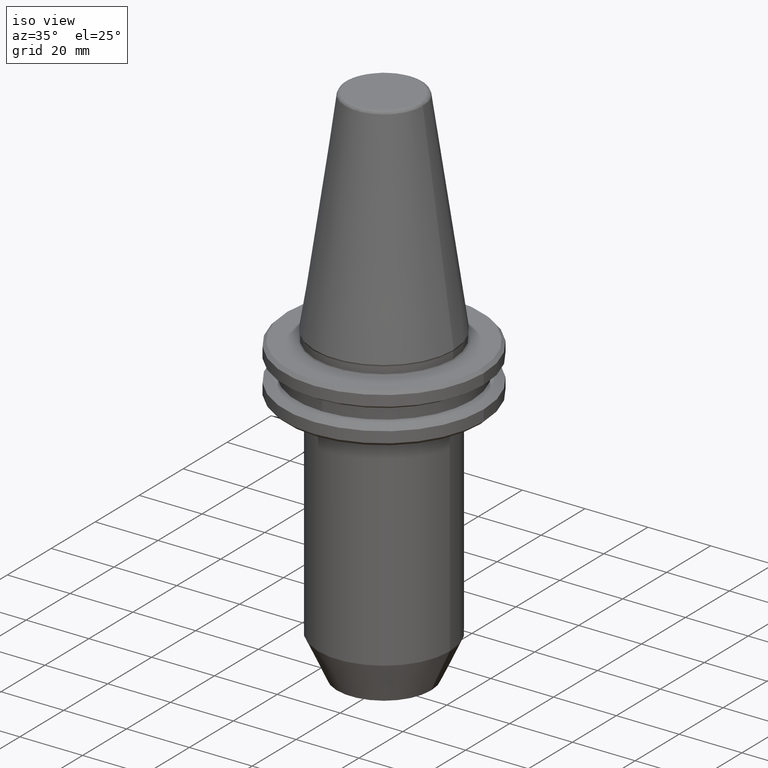
[diagram: clean part render]
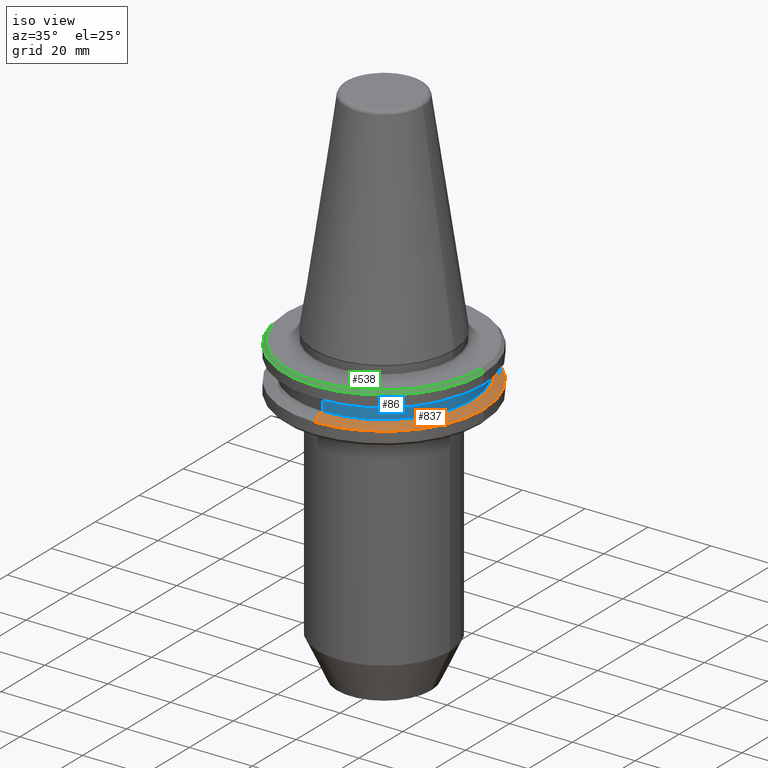
[diagram: same view with three faces highlighted in distinct colors, each labeled with its STEP entity id]
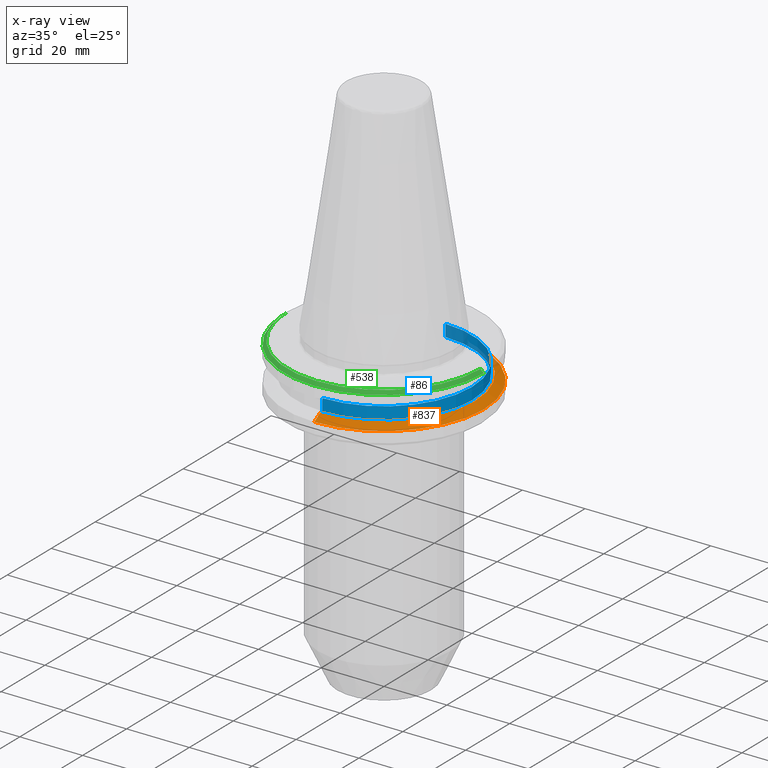
[diagram: x-ray of the same camera — body ghosted, the three highlighted faces saturated]
A machine part, iso view with three faces highlighted in distinct colors.
The next image is the same camera in x-ray (body ghosted, the three faces saturated) — at least one of them is partly hidden behind the body in this view.
Their STEP definitions:

[orange] entity #837 — the highlighted conical surface has half-angle 60 deg.
#17 = AXIS2_PLACEMENT_3D ( 'NONE', #236, #229, #244 ) ;
#38 = ORIENTED_EDGE ( 'NONE', *, *, #1024, .T. ) ;
#46 = CARTESIAN_POINT ( 'NONE',  ( 3.716245608450672000E-015, -28.94089652902035000, -12.99999999712499800 ) ) ;
#56 = DIRECTION ( 'NONE',  ( 0.0000000000000000000, 1.000000000000000000, 5.463695987365708300E-017 ) ) ;
#58 = DIRECTION ( 'NONE',  ( -0.0000000000000000000, -2.997010603902405300E-017, 1.000000000000000000 ) ) ;
#60 = CARTESIAN_POINT ( 'NONE',  ( 0.0000000000000000000, 4.860661613497607000E-017, -14.62183664187525500 ) ) ;
#83 = EDGE_CURVE ( 'NONE', #755, #751, #814, .T. ) ;
#138 = DIRECTION ( 'NONE',  ( 1.060575238770128500E-016, -0.8660254038213648400, -0.4999999999360417200 ) ) ;
#140 = CARTESIAN_POINT ( 'NONE',  ( 3.888253587334946400E-015, -31.75000000034377500, -14.62183664219847800 ) ) ;
#157 = ORIENTED_EDGE ( 'NONE', *, *, #83, .F. ) ;
#161 = CONICAL_SURFACE ( 'NONE', #17, 31.75000000034377500, 1.047197551270450300 ) ;
#186 = FACE_OUTER_BOUND ( 'NONE', #201, .T. ) ;
#201 = EDGE_LOOP ( 'NONE', ( #691, #38, #1214, #637, #157 ) ) ;
#229 = DIRECTION ( 'NONE',  ( 0.0000000000000000000, 2.731847993634684000E-017, -1.000000000000000000 ) ) ;
#236 = CARTESIAN_POINT ( 'NONE',  ( 0.0000000000000000000, 2.369500423679112900E-032, -14.62183664219847800 ) ) ;
#244 = DIRECTION ( 'NONE',  ( 0.0000000000000000000, 1.000000000000000000, 0.0000000000000000000 ) ) ;
#248 = DIRECTION ( 'NONE',  ( 0.0000000000000000000, 1.000000000000000000, 0.0000000000000000000 ) ) ;
#249 = DIRECTION ( 'NONE',  ( 0.0000000000000000000, 2.731847993634684000E-017, -1.000000000000000000 ) ) ;
#251 = CARTESIAN_POINT ( 'NONE',  ( 0.0000000000000000000, -4.430611184847187400E-017, -12.99999999712499800 ) ) ;
#274 = VECTOR ( 'NONE', #138, 1000.000000000000100 ) ;
#275 = CARTESIAN_POINT ( 'NONE',  ( 0.0000000000000000000, 31.74999999978393800, -14.62183664187525300 ) ) ;
#280 = CARTESIAN_POINT ( 'NONE',  ( 0.0000000000000000000, 28.94089652902035000, -12.99999999712499800 ) ) ;
#288 = VERTEX_POINT ( 'NONE', #935 ) ;
#327 = DIRECTION ( 'NONE',  ( 0.0000000000000000000, 1.000000000000000000, 5.463695987365708300E-017 ) ) ;
#574 = CARTESIAN_POINT ( 'NONE',  ( 0.0000000000000000000, 4.860661613497607000E-017, -14.62183664187525500 ) ) ;
#637 = ORIENTED_EDGE ( 'NONE', *, *, #1122, .T. ) ;
#658 = AXIS2_PLACEMENT_3D ( 'NONE', #251, #249, #248 ) ;
#691 = ORIENTED_EDGE ( 'NONE', *, *, #805, .T. ) ;
#751 = VERTEX_POINT ( 'NONE', #275 ) ;
#755 = VERTEX_POINT ( 'NONE', #280 ) ;
#790 = AXIS2_PLACEMENT_3D ( 'NONE', #574, #975, #327 ) ;
#805 = EDGE_CURVE ( 'NONE', #755, #1171, #938, .T. ) ;
#814 = LINE ( 'NONE', #1070, #980 ) ;
#837 = ADVANCED_FACE ( 'NONE', ( #186 ), #161, .T. ) ;
#935 = CARTESIAN_POINT ( 'NONE',  ( 31.74999999978393100, 1.653892339742538800E-028, -14.62183664187525500 ) ) ;
#938 = CIRCLE ( 'NONE', #658, 28.94089652902035000 ) ;
#966 = AXIS2_PLACEMENT_3D ( 'NONE', #60, #58, #56 ) ;
#967 = LINE ( 'NONE', #140, #274 ) ;
#975 = DIRECTION ( 'NONE',  ( -0.0000000000000000000, -2.997010603902405300E-017, 1.000000000000000000 ) ) ;
#980 = VECTOR ( 'NONE', #1309, 1000.000000000000100 ) ;
#1024 = EDGE_CURVE ( 'NONE', #1171, #1287, #967, .T. ) ;
#1038 = CIRCLE ( 'NONE', #790, 31.74999999978393100 ) ;
#1070 = CARTESIAN_POINT ( 'NONE',  ( 0.0000000000000000000, 31.75000000034377500, -14.62183664219847800 ) ) ;
#1083 = CIRCLE ( 'NONE', #966, 31.74999999978393100 ) ;
#1122 = EDGE_CURVE ( 'NONE', #288, #751, #1083, .T. ) ;
#1171 = VERTEX_POINT ( 'NONE', #46 ) ;
#1204 = CARTESIAN_POINT ( 'NONE',  ( 3.888253587266386500E-015, -31.74999999978393800, -14.62183664187525700 ) ) ;
#1214 = ORIENTED_EDGE ( 'NONE', *, *, #1275, .T. ) ;
#1275 = EDGE_CURVE ( 'NONE', #1287, #288, #1038, .T. ) ;
#1287 = VERTEX_POINT ( 'NONE', #1204 ) ;
#1309 = DIRECTION ( 'NONE',  ( 0.0000000000000000000, 0.8660254038213648400, -0.4999999999360417200 ) ) ;

[blue] entity #86 — the highlighted cylindrical surface (partial cylindrical patch) has radius 28 mm, axis along (0, -0, 1).
#49 = EDGE_CURVE ( 'NONE', #125, #210, #254, .T. ) ;
#53 = CARTESIAN_POINT ( 'NONE',  ( 0.0000000000000000000, -28.00000000000000000, -13.00000000180000500 ) ) ;
#62 = DIRECTION ( 'NONE',  ( 0.0000000000000000000, -1.000000000000000000, -6.195440985631454100E-017 ) ) ;
#86 = ADVANCED_FACE ( 'NONE', ( #515 ), #366, .T. ) ;
#125 = VERTEX_POINT ( 'NONE', #1042 ) ;
#126 = EDGE_CURVE ( 'NONE', #1155, #283, #363, .T. ) ;
#170 = AXIS2_PLACEMENT_3D ( 'NONE', #1202, #1093, #1047 ) ;
#202 = CARTESIAN_POINT ( 'NONE',  ( 3.429011037612589300E-015, 28.00000000000000000, -13.00000000000000200 ) ) ;
#206 = DIRECTION ( 'NONE',  ( 0.0000000000000000000, -3.097720492815727700E-017, 1.000000000000000000 ) ) ;
#208 = DIRECTION ( 'NONE',  ( 0.0000000000000000000, -3.097720492815727700E-017, 1.000000000000000000 ) ) ;
#210 = VERTEX_POINT ( 'NONE', #978 ) ;
#220 = CARTESIAN_POINT ( 'NONE',  ( 0.0000000000000000000, -28.00000000000000000, -13.00000000000000500 ) ) ;
#254 = CIRCLE ( 'NONE', #1203, 28.00000000000000000 ) ;
#282 = CARTESIAN_POINT ( 'NONE',  ( 0.0000000000000000000, -1.177133786154797700E-016, -9.200000003600001400 ) ) ;
#283 = VERTEX_POINT ( 'NONE', #1124 ) ;
#308 = VECTOR ( 'NONE', #206, 1000.000000000000000 ) ;
#363 = CIRCLE ( 'NONE', #170, 28.00000000000000000 ) ;
#366 = CYLINDRICAL_SURFACE ( 'NONE', #1013, 28.00000000000000000 ) ;
#484 = VECTOR ( 'NONE', #208, 1000.000000000000000 ) ;
#515 = FACE_OUTER_BOUND ( 'NONE', #565, .T. ) ;
#561 = ORIENTED_EDGE ( 'NONE', *, *, #974, .T. ) ;
#565 = EDGE_LOOP ( 'NONE', ( #957, #561, #1288, #824 ) ) ;
#619 = LINE ( 'NONE', #220, #308 ) ;
#824 = ORIENTED_EDGE ( 'NONE', *, *, #954, .F. ) ;
#954 = EDGE_CURVE ( 'NONE', #1155, #210, #619, .T. ) ;
#957 = ORIENTED_EDGE ( 'NONE', *, *, #126, .T. ) ;
#974 = EDGE_CURVE ( 'NONE', #283, #125, #1172, .T. ) ;
#978 = CARTESIAN_POINT ( 'NONE',  ( 0.0000000000000000000, -28.00000000000000000, -9.200000003600003100 ) ) ;
#1013 = AXIS2_PLACEMENT_3D ( 'NONE', #1130, #1369, #1138 ) ;
#1042 = CARTESIAN_POINT ( 'NONE',  ( 3.429011037612589300E-015, 28.00000000000000000, -9.200000003600001400 ) ) ;
#1047 = DIRECTION ( 'NONE',  ( 0.0000000000000000000, -1.000000000000000000, -6.195440985631454100E-017 ) ) ;
#1093 = DIRECTION ( 'NONE',  ( 0.0000000000000000000, -3.097720492815727700E-017, 1.000000000000000000 ) ) ;
#1124 = CARTESIAN_POINT ( 'NONE',  ( 3.429011037612589300E-015, 28.00000000000000000, -13.00000000180000200 ) ) ;
#1130 = CARTESIAN_POINT ( 'NONE',  ( 0.0000000000000000000, 0.0000000000000000000, -13.00000000000000400 ) ) ;
#1138 = DIRECTION ( 'NONE',  ( 0.0000000000000000000, -1.000000000000000000, -6.195440985631454100E-017 ) ) ;
#1155 = VERTEX_POINT ( 'NONE', #53 ) ;
#1172 = LINE ( 'NONE', #202, #484 ) ;
#1202 = CARTESIAN_POINT ( 'NONE',  ( 0.0000000000000000000, 5.575899585217908400E-026, -13.00000000180000400 ) ) ;
#1203 = AXIS2_PLACEMENT_3D ( 'NONE', #282, #1358, #62 ) ;
#1288 = ORIENTED_EDGE ( 'NONE', *, *, #49, .T. ) ;
#1358 = DIRECTION ( 'NONE',  ( -0.0000000000000000000, 3.097720492815727700E-017, -1.000000000000000000 ) ) ;
#1369 = DIRECTION ( 'NONE',  ( 0.0000000000000000000, -3.097720492815727700E-017, 1.000000000000000000 ) ) ;

[green] entity #538 — the highlighted conical surface has half-angle 45 deg.
#14 = ORIENTED_EDGE ( 'NONE', *, *, #239, .T. ) ;
#80 = LINE ( 'NONE', #111, #1367 ) ;
#109 = DIRECTION ( 'NONE',  ( -0.7071067811865471300, 0.0000000000000000000, -0.7071067811865479100 ) ) ;
#111 = CARTESIAN_POINT ( 'NONE',  ( -31.63284271242281800, 0.0000000000000000000, -4.082842712422815300 ) ) ;
#182 = DIRECTION ( 'NONE',  ( 1.000000000000000000, 0.0000000000000000000, 0.0000000000000000000 ) ) ;
#187 = DIRECTION ( 'NONE',  ( -0.0000000000000000000, -0.0000000000000000000, 1.000000000000000000 ) ) ;
#188 = CARTESIAN_POINT ( 'NONE',  ( 0.0000000000000000000, 0.0000000000000000000, -3.200000000000036100 ) ) ;
#224 = CARTESIAN_POINT ( 'NONE',  ( -31.74999999999994300, 3.888253587292843300E-015, -4.200000000000036600 ) ) ;
#233 = EDGE_LOOP ( 'NONE', ( #480, #1230, #358, #14 ) ) ;
#239 = EDGE_CURVE ( 'NONE', #842, #655, #1235, .T. ) ;
#277 = AXIS2_PLACEMENT_3D ( 'NONE', #1333, #1120, #1049 ) ;
#302 = CARTESIAN_POINT ( 'NONE',  ( 31.74999999999994300, 0.0000000000000000000, -4.200000000000036600 ) ) ;
#324 = CARTESIAN_POINT ( 'NONE',  ( -30.74999999999994300, 0.0000000000000000000, -3.200000000000036100 ) ) ;
#355 = VERTEX_POINT ( 'NONE', #895 ) ;
#358 = ORIENTED_EDGE ( 'NONE', *, *, #1068, .T. ) ;
#379 = CARTESIAN_POINT ( 'NONE',  ( 31.63284271242281800, 3.873905957570027400E-015, -4.082842712422815300 ) ) ;
#409 = CIRCLE ( 'NONE', #866, 30.74999999999994300 ) ;
#480 = ORIENTED_EDGE ( 'NONE', *, *, #1301, .F. ) ;
#538 = ADVANCED_FACE ( 'NONE', ( #1302 ), #676, .T. ) ;
#546 = DIRECTION ( 'NONE',  ( -1.000000000000000000, 0.0000000000000000000, 0.0000000000000000000 ) ) ;
#550 = CARTESIAN_POINT ( 'NONE',  ( 0.0000000000000000000, 0.0000000000000000000, -4.082842712422815300 ) ) ;
#553 = DIRECTION ( 'NONE',  ( 0.0000000000000000000, 0.0000000000000000000, -1.000000000000000000 ) ) ;
#594 = VERTEX_POINT ( 'NONE', #324 ) ;
#623 = VECTOR ( 'NONE', #716, 1000.000000000000000 ) ;
#655 = VERTEX_POINT ( 'NONE', #302 ) ;
#676 = CONICAL_SURFACE ( 'NONE', #1262, 31.63284271242281800, 0.7853981633974477200 ) ;
#716 = DIRECTION ( 'NONE',  ( 0.7071067811865471300, 8.659560562354927900E-017, -0.7071067811865479100 ) ) ;
#760 = LINE ( 'NONE', #379, #623 ) ;
#842 = VERTEX_POINT ( 'NONE', #224 ) ;
#866 = AXIS2_PLACEMENT_3D ( 'NONE', #188, #187, #182 ) ;
#895 = CARTESIAN_POINT ( 'NONE',  ( 30.74999999999994300, 3.827021247335477300E-015, -3.200000000000036100 ) ) ;
#982 = EDGE_CURVE ( 'NONE', #594, #355, #409, .T. ) ;
#1049 = DIRECTION ( 'NONE',  ( 1.000000000000000000, 0.0000000000000000000, 0.0000000000000000000 ) ) ;
#1068 = EDGE_CURVE ( 'NONE', #594, #842, #80, .T. ) ;
#1120 = DIRECTION ( 'NONE',  ( -0.0000000000000000000, -0.0000000000000000000, 1.000000000000000000 ) ) ;
#1230 = ORIENTED_EDGE ( 'NONE', *, *, #982, .F. ) ;
#1235 = CIRCLE ( 'NONE', #277, 31.74999999999994300 ) ;
#1262 = AXIS2_PLACEMENT_3D ( 'NONE', #550, #553, #546 ) ;
#1301 = EDGE_CURVE ( 'NONE', #355, #655, #760, .T. ) ;
#1302 = FACE_OUTER_BOUND ( 'NONE', #233, .T. ) ;
#1333 = CARTESIAN_POINT ( 'NONE',  ( 0.0000000000000000000, 0.0000000000000000000, -4.200000000000036600 ) ) ;
#1367 = VECTOR ( 'NONE', #109, 1000.000000000000000 ) ;